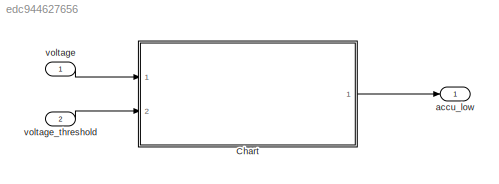
MODEL slx_edc944627656
KIND model
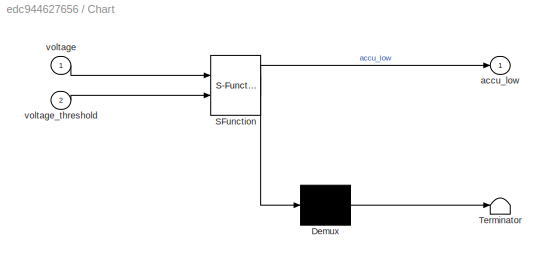
BLOCK [SubSystem] Chart
  ErrorFcn = Stateflow.Translate.translate
  FunctionWithSeparateData = off
  MaskHideContents = off
  MinAlgLoopOccurrences = off
  Opaque = off
  PermitHierarchicalResolution = ExplicitOnly
  Ports = [2, 1]
  PropExecContextOutsideSubsystem = off
  RTWSystemCode = Auto
  RequestExecContextInheritance = off
  SFBlockType = Chart
  TreatAsAtomicUnit = on
BLOCK [Demux] Chart/ Demux 
  Outputs = 1
  Ports = [1, 1]
BLOCK [S-Function] Chart/ SFunction 
  EnableBusSupport = on
  FunctionName = sf_sfun
  PortCounts = [2 2]
  Ports = [2, 2]
  Tag = Stateflow S-Function floribot_accu_watchdog 1
BLOCK [Terminator] Chart/ Terminator 
BLOCK [Outport] Chart/accu_low
  IconDisplay = Port number
BLOCK [Inport] Chart/voltage
  IconDisplay = Port number
BLOCK [Inport] Chart/voltage_threshold
  IconDisplay = Port number
  Port = 2
BLOCK [Outport] accu_low
  IconDisplay = Port number
BLOCK [Inport] voltage
  IconDisplay = Port number
BLOCK [Inport] voltage_threshold
  IconDisplay = Port number
  Port = 2
LINE Chart:1 -> accu_low:1
LINE voltage:1 -> Chart:1
LINE voltage_threshold:1 -> Chart:2
